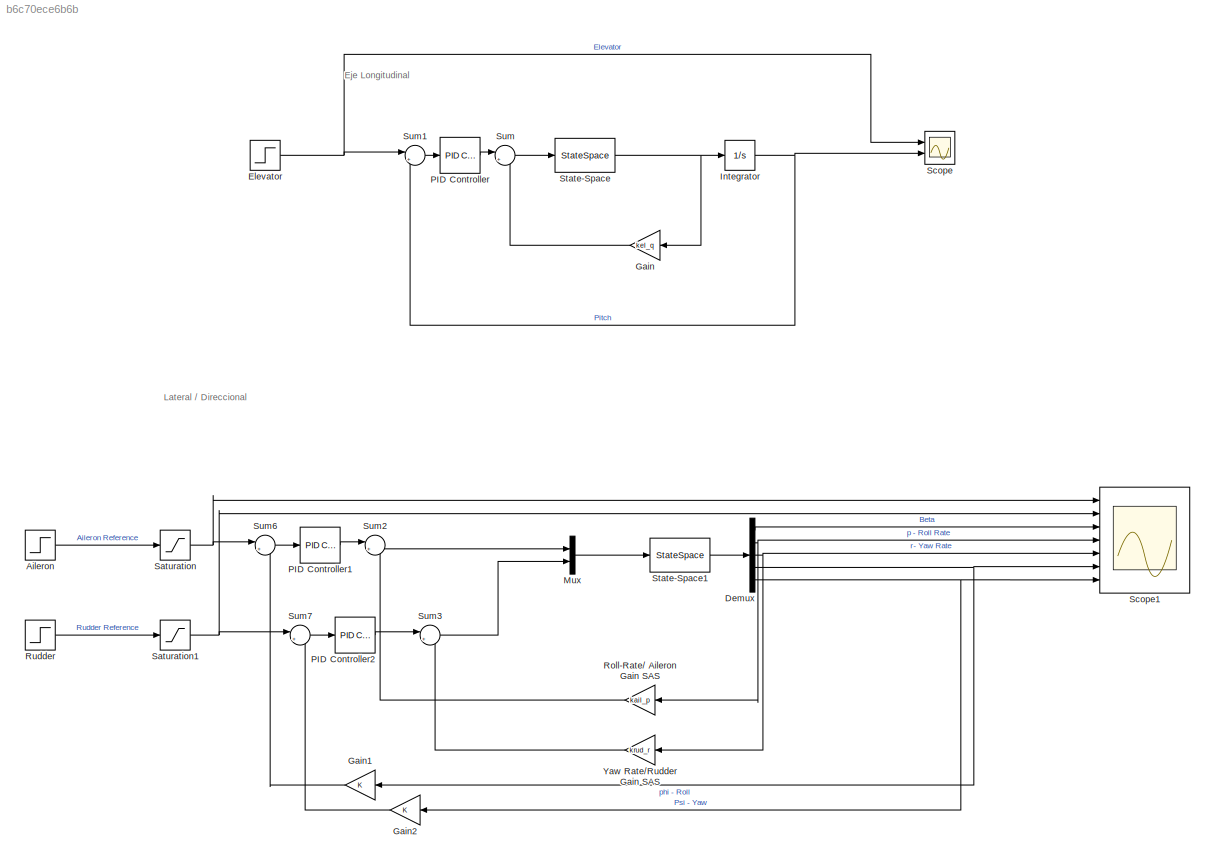
MODEL slx_b6c70ece6b6b
KIND model
CONFIG AbsTol = auto
CONFIG EnableMultiTasking = off
CONFIG FixedStep = auto
CONFIG MaxStep = auto
CONFIG MinStep = auto
CONFIG RelTol = 1e-3
CONFIG SampleTimeConstraint = Unconstrained
CONFIG SolverName = VariableStepAuto
CONFIG StartTime = 0.0
CONFIG StopTime = 20
BLOCK [Step] Aileron
  After = 40
  SampleTime = 0
  Time = 0
  ZeroCross = off
BLOCK [Demux] Demux
  Outputs = 5
  Ports = [1, 5]
BLOCK [Step] Elevator
  After = -10
  SampleTime = 0
  Time = 0
  ZeroCross = off
BLOCK [Gain] Gain
  Gain = kel_q
BLOCK [Gain] Gain1
BLOCK [Gain] Gain2
BLOCK [Integrator] Integrator
  Ports = [1, 1]
  ZeroCross = off
BLOCK [Mux] Mux
  DisplayOption = bar
  Inputs = 2
  Ports = [2, 1]
BLOCK [Reference] PID Controller  REF=slpidlib/PID Controller
  Ports = [1, 1]
  SourceBlock = slpidlib/PID Controller
  SourceProductBaseCode = SL
  SourceType = PID 1dof
BLOCK [Reference] PID Controller1  REF=slpidlib/PID Controller
  Ports = [1, 1]
  SourceBlock = slpidlib/PID Controller
  SourceProductBaseCode = SL
  SourceType = PID 1dof
BLOCK [Reference] PID Controller2  REF=slpidlib/PID Controller
  Ports = [1, 1]
  SourceBlock = slpidlib/PID Controller
  SourceProductBaseCode = SL
  SourceType = PID 1dof
BLOCK [Gain] Roll-Rate// Aileron Gain SAS
  Gain = kail_p
BLOCK [Step] Rudder
  After = 40
  SampleTime = 0
  Time = 0
  ZeroCross = off
BLOCK [Saturate] Saturation
  LowerLimit = -40
  UpperLimit = 40
  ZeroCross = off
BLOCK [Saturate] Saturation1
  LowerLimit = -40
  UpperLimit = 40
  ZeroCross = off
BLOCK [Scope] Scope
  Floating = off
  NumInputPorts = 2
  Ports = [2]
  ScopeSpecificationString = Simulink.scopes.TimeScopeBlockCfg('CurrentConfiguration', extmgr.ConfigurationSet(extmgr.Configuration('Core','General UI',true),extmgr.Configuration('Core','Source UI',true),extmgr.Configuration('Sources','WiredSimulink',true),extmgr.Configuration('Visuals','Time Domain',true,'SerializedDisplays',{struct('MinYLimReal','-45.26898','MaxYLimReal','5.02989','YLabelReal','','MinYLimMag','0.00000','Max...<+1401ch>
BLOCK [Scope] Scope1
  Floating = off
  NumInputPorts = 7
  Ports = [7]
  ScopeSpecificationString = Simulink.scopes.TimeScopeBlockCfg('CurrentConfiguration', extmgr.ConfigurationSet(extmgr.Configuration('Core','General UI',true),extmgr.Configuration('Core','Source UI',true),extmgr.Configuration('Sources','WiredSimulink',true,'DataLoggingVariableName','ScopeData1'),extmgr.Configuration('Visuals','Time Domain',true,'SerializedDisplays',{struct('MinYLimReal','-73.60125','MaxYLimReal','400.91774','Y...<+1601ch>
BLOCK [StateSpace] State-Space
  A = el_q.A
  B = el_q.B
  C = el_q.C
  D = el_q.D
  InitialCondition = 0
  Ports = [1, 1]
BLOCK [StateSpace] State-Space1
  A = lat.A
  B = lat.B
  C = lat.C
  D = lat.D
  InitialCondition = 0
  ParameterTunability = Optimized
  Ports = [1, 1]
BLOCK [Sum] Sum
  Inputs = |+-
  Ports = [2, 1]
BLOCK [Sum] Sum1
  Inputs = |+-
  Ports = [2, 1]
BLOCK [Sum] Sum2
  Inputs = |+-
  Ports = [2, 1]
BLOCK [Sum] Sum3
  Inputs = |+-
  Ports = [2, 1]
BLOCK [Sum] Sum6
  Inputs = |+-
  Ports = [2, 1]
BLOCK [Sum] Sum7
  Inputs = |+-
  Ports = [2, 1]
BLOCK [Gain] Yaw Rate//Rudder Gain SAS
  Gain = krud_r
ANNOTATION (root): Eje Longitudinal
ANNOTATION (root): Lateral / Direccional
LINE Aileron:1 -> Saturation:1
LINE Demux:1 -> Scope1:3
NET Demux:2 -> Roll-Rate// Aileron Gain SAS:1, Scope1:4
NET Demux:3 -> Scope1:5, Yaw Rate//Rudder Gain SAS:1
NET Demux:4 -> Gain1:1, Scope1:6
NET Demux:5 -> Gain2:1, Scope1:7
NET Elevator:1 -> Scope:1, Sum1:1
LINE Gain1:1 -> Sum6:2
LINE Gain2:1 -> Sum7:2
LINE Gain:1 -> Sum:2
NET Integrator:1 -> Scope:2, Sum1:2
LINE Mux:1 -> State-Space1:1
LINE PID Controller1:1 -> Sum2:1
LINE PID Controller2:1 -> Sum3:1
LINE PID Controller:1 -> Sum:1
LINE Roll-Rate// Aileron Gain SAS:1 -> Sum2:2
LINE Rudder:1 -> Saturation1:1
NET Saturation1:1 -> Scope1:2, Sum7:1
NET Saturation:1 -> Scope1:1, Sum6:1
LINE State-Space1:1 -> Demux:1
NET State-Space:1 -> Gain:1, Integrator:1
LINE Sum1:1 -> PID Controller:1
LINE Sum2:1 -> Mux:1
LINE Sum3:1 -> Mux:2
LINE Sum6:1 -> PID Controller1:1
LINE Sum7:1 -> PID Controller2:1
LINE Sum:1 -> State-Space:1
LINE Yaw Rate//Rudder Gain SAS:1 -> Sum3:2
note: NET lines group one-source signal fan-out (src -> all destinations, sorted); 1:1 wires keep LINE
